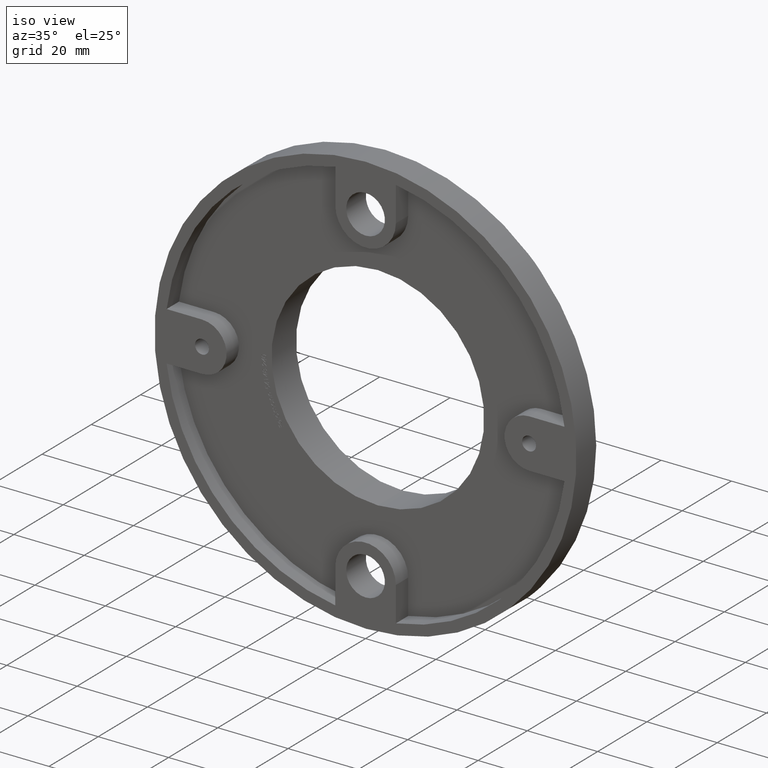
[diagram: clean part render]
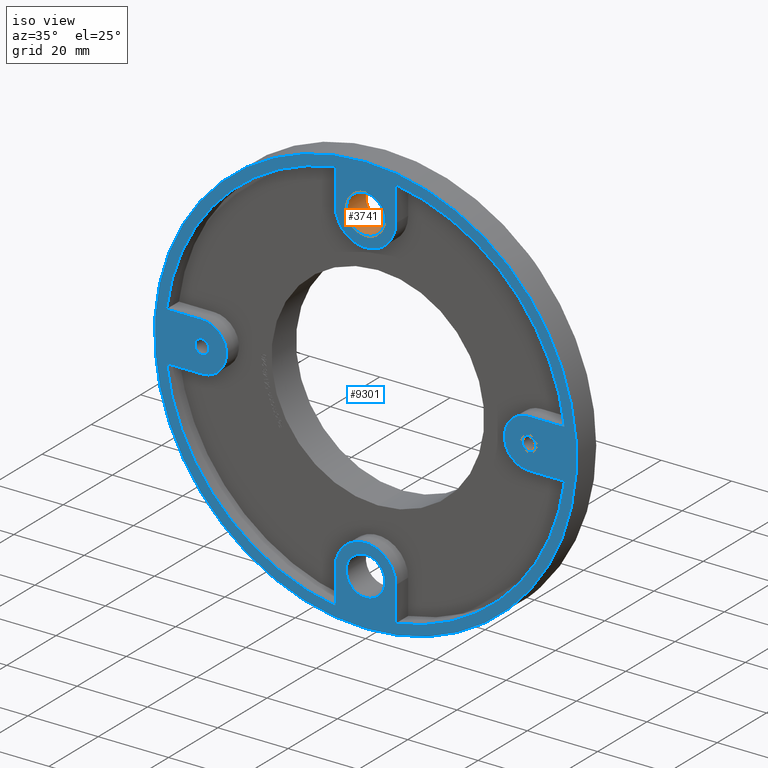
[diagram: same view with the hole feature highlighted: cylindrical wall and planar end face, labeled with their STEP entity ids]
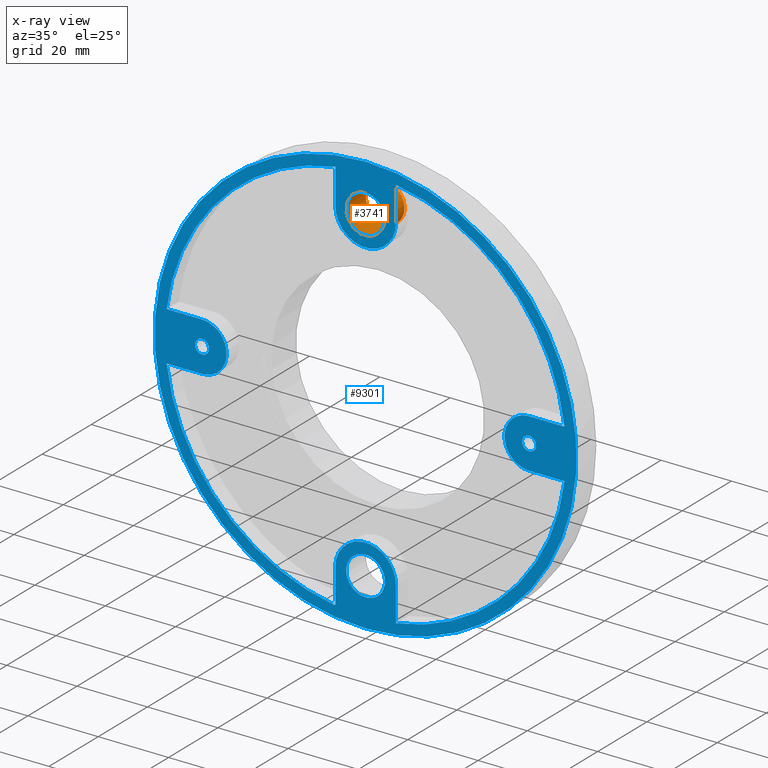
[diagram: x-ray of the same camera — body ghosted, the hole faces saturated]
A machine part, iso view. The highlighted faces form one hole feature of diameter 11 mm: the cylindrical wall (entity #3741, orange) and its adjacent planar end face (entity #9301, blue) — they share a circular edge in the B-rep.
The next image is the same camera in x-ray (body ghosted, the hole faces saturated) — the bore reads through the body.
Wall:
#30 = DIRECTION ( 'NONE',  ( 0.000000000000000000, 1.000000000000000000, 0.000000000000000000 ) ) ;
#431 = AXIS2_PLACEMENT_3D ( 'NONE', #11296, #30, #2151 ) ;
#748 = CARTESIAN_POINT ( 'NONE',  ( 0.000000000000000000, 0.000000000000000000, 52.00000000000000000 ) ) ;
#1277 = CARTESIAN_POINT ( 'NONE',  ( 0.000000000000000000, 8.000000000000000000, 46.50000000000000000 ) ) ;
#1892 = CARTESIAN_POINT ( 'NONE',  ( 0.000000000000000000, 0.000000000000000000, 46.50000000000000000 ) ) ;
#2151 = DIRECTION ( 'NONE',  ( 0.000000000000000000, 0.000000000000000000, 1.000000000000000000 ) ) ;
#2725 = AXIS2_PLACEMENT_3D ( 'NONE', #1892, #2877, #12040 ) ;
#2877 = DIRECTION ( 'NONE',  ( 0.000000000000000000, 1.000000000000000000, 0.000000000000000000 ) ) ;
#2944 = EDGE_CURVE ( 'NONE', #11782, #11782, #6981, .T. ) ;
#3592 = ORIENTED_EDGE ( 'NONE', *, *, #2944, .F. ) ;
#3741 = ADVANCED_FACE ( 'NONE', ( #7280, #11120 ), #8912, .F. ) ;
#4895 = ORIENTED_EDGE ( 'NONE', *, *, #12231, .T. ) ;
#6981 = CIRCLE ( 'NONE', #2725, 5.499999999999998224 ) ;
#7027 = EDGE_LOOP ( 'NONE', ( #4895 ) ) ;
#7280 = FACE_OUTER_BOUND ( 'NONE', #7027, .T. ) ;
#7331 = AXIS2_PLACEMENT_3D ( 'NONE', #1277, #13145, #8007 ) ;
#8007 = DIRECTION ( 'NONE',  ( 0.000000000000000000, 0.000000000000000000, -1.000000000000000000 ) ) ;
#8912 = CYLINDRICAL_SURFACE ( 'NONE', #7331, 5.499999999999998224 ) ;
#9099 = VERTEX_POINT ( 'NONE', #10815 ) ;
#9560 = EDGE_LOOP ( 'NONE', ( #3592 ) ) ;
#10544 = CIRCLE ( 'NONE', #431, 5.499999999999998224 ) ;
#10815 = CARTESIAN_POINT ( 'NONE',  ( 0.000000000000000000, 8.000000000000000000, 52.00000000000000000 ) ) ;
#11120 = FACE_OUTER_BOUND ( 'NONE', #9560, .T. ) ;
#11296 = CARTESIAN_POINT ( 'NONE',  ( 0.000000000000000000, 8.000000000000000000, 46.50000000000000000 ) ) ;
#11782 = VERTEX_POINT ( 'NONE', #748 ) ;
#12040 = DIRECTION ( 'NONE',  ( 0.000000000000000000, 0.000000000000000000, 1.000000000000000000 ) ) ;
#12231 = EDGE_CURVE ( 'NONE', #9099, #9099, #10544, .T. ) ;
#13145 = DIRECTION ( 'NONE',  ( -0.000000000000000000, -1.000000000000000000, -0.000000000000000000 ) ) ;
End face:
#78 = CARTESIAN_POINT ( 'NONE',  ( 1.206039934574417412E-15, -0.000000000000000000, -6.999999999999998224 ) ) ;
#236 = DIRECTION ( 'NONE',  ( -0.000000000000000000, 1.000000000000000000, -0.000000000000000000 ) ) ;
#239 = EDGE_CURVE ( 'NONE', #12414, #12414, #6440, .T. ) ;
#248 = ORIENTED_EDGE ( 'NONE', *, *, #7575, .T. ) ;
#375 = CARTESIAN_POINT ( 'NONE',  ( 0.000000000000000000, 0.000000000000000000, 6.999999999999993783 ) ) ;
#508 = CARTESIAN_POINT ( 'NONE',  ( -8.624999999999992895, 0.000000000000000000, -56.34367200493768735 ) ) ;
#567 = AXIS2_PLACEMENT_3D ( 'NONE', #2867, #5918, #8089 ) ;
#662 = CARTESIAN_POINT ( 'NONE',  ( 0.000000000000000000, 0.000000000000000000, 0.000000000000000000 ) ) ;
#748 = CARTESIAN_POINT ( 'NONE',  ( 0.000000000000000000, 0.000000000000000000, 52.00000000000000000 ) ) ;
#765 = VERTEX_POINT ( 'NONE', #10303 ) ;
#766 = AXIS2_PLACEMENT_3D ( 'NONE', #11812, #11901, #7008 ) ;
#861 = DIRECTION ( 'NONE',  ( 0.000000000000000000, 1.000000000000000000, 0.000000000000000000 ) ) ;
#995 = EDGE_CURVE ( 'NONE', #13049, #6119, #9145, .T. ) ;
#1021 = DIRECTION ( 'NONE',  ( 0.000000000000000000, 0.000000000000000000, 1.000000000000000000 ) ) ;
#1149 = CARTESIAN_POINT ( 'NONE',  ( -8.625000000000007105, 0.000000000000000000, 56.34367200493768735 ) ) ;
#1258 = AXIS2_PLACEMENT_3D ( 'NONE', #10843, #6785, #7904 ) ;
#1276 = ORIENTED_EDGE ( 'NONE', *, *, #7214, .T. ) ;
#1315 = CARTESIAN_POINT ( 'NONE',  ( 0.000000000000000000, 0.000000000000000000, 0.000000000000000000 ) ) ;
#1324 = CIRCLE ( 'NONE', #1258, 5.499999999999998224 ) ;
#1367 = LINE ( 'NONE', #11327, #5513 ) ;
#1368 = VERTEX_POINT ( 'NONE', #5610 ) ;
#1402 = LINE ( 'NONE', #11568, #5557 ) ;
#1531 = ORIENTED_EDGE ( 'NONE', *, *, #9963, .F. ) ;
#1718 = CARTESIAN_POINT ( 'NONE',  ( 0.000000000000000000, 0.000000000000000000, -52.00000000000000000 ) ) ;
#1844 = EDGE_CURVE ( 'NONE', #8005, #12554, #3851, .T. ) ;
#1848 = ORIENTED_EDGE ( 'NONE', *, *, #8171, .F. ) ;
#1892 = CARTESIAN_POINT ( 'NONE',  ( 0.000000000000000000, 0.000000000000000000, 46.50000000000000000 ) ) ;
#1956 = FACE_BOUND ( 'NONE', #10724, .T. ) ;
#1985 = CARTESIAN_POINT ( 'NONE',  ( -46.50000000000000000, 0.000000000000000000, 0.000000000000000000 ) ) ;
#2062 = DIRECTION ( 'NONE',  ( 1.762272732275772637E-16, 0.000000000000000000, -1.000000000000000000 ) ) ;
#2133 = DIRECTION ( 'NONE',  ( 0.000000000000000000, 0.000000000000000000, -1.000000000000000000 ) ) ;
#2211 = EDGE_LOOP ( 'NONE', ( #13188 ) ) ;
#2240 = DIRECTION ( 'NONE',  ( 0.000000000000000000, 0.000000000000000000, -1.000000000000000000 ) ) ;
#2289 = CARTESIAN_POINT ( 'NONE',  ( 8.625000000000005329, 0.000000000000000000, -46.50000000000000000 ) ) ;
#2489 = ORIENTED_EDGE ( 'NONE', *, *, #2944, .T. ) ;
#2607 = CARTESIAN_POINT ( 'NONE',  ( 0.000000000000000000, 0.000000000000000000, 0.000000000000000000 ) ) ;
#2625 = AXIS2_PLACEMENT_3D ( 'NONE', #1315, #7387, #2240 ) ;
#2678 = ORIENTED_EDGE ( 'NONE', *, *, #995, .T. ) ;
#2725 = AXIS2_PLACEMENT_3D ( 'NONE', #1892, #2877, #12040 ) ;
#2746 = CARTESIAN_POINT ( 'NONE',  ( 0.000000000000000000, 0.000000000000000000, 60.00000000000000000 ) ) ;
#2866 = DIRECTION ( 'NONE',  ( 0.000000000000000000, 0.000000000000000000, 1.000000000000000000 ) ) ;
#2867 = CARTESIAN_POINT ( 'NONE',  ( 46.50000000000000000, 0.000000000000000000, 0.000000000000000000 ) ) ;
#2869 = EDGE_CURVE ( 'NONE', #8707, #3365, #9073, .T. ) ;
#2877 = DIRECTION ( 'NONE',  ( 0.000000000000000000, 1.000000000000000000, 0.000000000000000000 ) ) ;
#2944 = EDGE_CURVE ( 'NONE', #11782, #11782, #6981, .T. ) ;
#2971 = AXIS2_PLACEMENT_3D ( 'NONE', #662, #5740, #12940 ) ;
#3033 = DIRECTION ( 'NONE',  ( 1.000000000000000000, 0.000000000000000000, 2.584371288373752584E-16 ) ) ;
#3074 = CARTESIAN_POINT ( 'NONE',  ( -46.50000000000000000, 0.000000000000000000, 6.999999999999993783 ) ) ;
#3165 = ORIENTED_EDGE ( 'NONE', *, *, #3822, .F. ) ;
#3192 = CIRCLE ( 'NONE', #4010, 8.625000000000000000 ) ;
#3244 = FACE_BOUND ( 'NONE', #3296, .T. ) ;
#3296 = EDGE_LOOP ( 'NONE', ( #8952 ) ) ;
#3365 = VERTEX_POINT ( 'NONE', #1149 ) ;
#3432 = EDGE_CURVE ( 'NONE', #13049, #3770, #1402, .T. ) ;
#3739 = VECTOR ( 'NONE', #9383, 1000.000000000000000 ) ;
#3770 = VERTEX_POINT ( 'NONE', #4756 ) ;
#3822 = EDGE_CURVE ( 'NONE', #8005, #8894, #7940, .T. ) ;
#3851 = CIRCLE ( 'NONE', #766, 7.000000000000000000 ) ;
#3979 = VERTEX_POINT ( 'NONE', #2746 ) ;
#4010 = AXIS2_PLACEMENT_3D ( 'NONE', #6680, #5476, #7573 ) ;
#4019 = VECTOR ( 'NONE', #6642, 1000.000000000000000 ) ;
#4217 = CARTESIAN_POINT ( 'NONE',  ( -8.625000000000003553, -0.000000000000000000, -1.519960231587854639E-15 ) ) ;
#4223 = EDGE_CURVE ( 'NONE', #4466, #4466, #9200, .T. ) ;
#4466 = VERTEX_POINT ( 'NONE', #6851 ) ;
#4538 = LINE ( 'NONE', #6214, #7061 ) ;
#4756 = CARTESIAN_POINT ( 'NONE',  ( 8.625000000000007105, 0.000000000000000000, -56.34367200493768735 ) ) ;
#4955 = CARTESIAN_POINT ( 'NONE',  ( 8.624999999999992895, 0.000000000000000000, 56.34367200493768735 ) ) ;
#5076 = CARTESIAN_POINT ( 'NONE',  ( -8.625000000000007105, 0.000000000000000000, 46.50000000000000000 ) ) ;
#5210 = DIRECTION ( 'NONE',  ( -1.000000000000000000, 0.000000000000000000, -1.722914192249168225E-16 ) ) ;
#5278 = CARTESIAN_POINT ( 'NONE',  ( 56.56854249492380404, 0.000000000000000000, -6.999999999999993783 ) ) ;
#5339 = EDGE_LOOP ( 'NONE', ( #248 ) ) ;
#5367 = AXIS2_PLACEMENT_3D ( 'NONE', #11793, #11962, #9016 ) ;
#5422 = EDGE_CURVE ( 'NONE', #9513, #765, #1367, .T. ) ;
#5476 = DIRECTION ( 'NONE',  ( -0.000000000000000000, 1.000000000000000000, -0.000000000000000000 ) ) ;
#5489 = FACE_BOUND ( 'NONE', #5339, .T. ) ;
#5513 = VECTOR ( 'NONE', #3033, 1000.000000000000000 ) ;
#5544 = VECTOR ( 'NONE', #5210, 1000.000000000000000 ) ;
#5557 = VECTOR ( 'NONE', #9491, 1000.000000000000000 ) ;
#5610 = CARTESIAN_POINT ( 'NONE',  ( 46.50000000000000000, 0.000000000000000000, -6.999999999999992895 ) ) ;
#5740 = DIRECTION ( 'NONE',  ( 0.000000000000000000, -1.000000000000000000, 0.000000000000000000 ) ) ;
#5886 = CARTESIAN_POINT ( 'NONE',  ( -8.625000000000007105, -0.000000000000000000, 0.000000000000000000 ) ) ;
#5918 = DIRECTION ( 'NONE',  ( 0.000000000000000000, 1.000000000000000000, -0.000000000000000000 ) ) ;
#5974 = AXIS2_PLACEMENT_3D ( 'NONE', #12020, #861, #8038 ) ;
#6029 = VECTOR ( 'NONE', #9848, 1000.000000000000000 ) ;
#6067 = ORIENTED_EDGE ( 'NONE', *, *, #2869, .F. ) ;
#6119 = VERTEX_POINT ( 'NONE', #12706 ) ;
#6120 = DIRECTION ( 'NONE',  ( 1.000000000000000000, 0.000000000000000000, -8.614570961245841126E-17 ) ) ;
#6214 = CARTESIAN_POINT ( 'NONE',  ( -6.030199672872079174E-16, -0.000000000000000000, -6.999999999999988454 ) ) ;
#6238 = LINE ( 'NONE', #4217, #10380 ) ;
#6328 = ORIENTED_EDGE ( 'NONE', *, *, #11320, .F. ) ;
#6440 = CIRCLE ( 'NONE', #7224, 2.000000000000003109 ) ;
#6606 = FACE_OUTER_BOUND ( 'NONE', #2211, .T. ) ;
#6642 = DIRECTION ( 'NONE',  ( -3.524545464551545274E-16, 0.000000000000000000, 1.000000000000000000 ) ) ;
#6680 = CARTESIAN_POINT ( 'NONE',  ( -1.138921523207038456E-14, 0.000000000000000000, 46.50000000000000000 ) ) ;
#6744 = LINE ( 'NONE', #12813, #4019 ) ;
#6785 = DIRECTION ( 'NONE',  ( 0.000000000000000000, 1.000000000000000000, -0.000000000000000000 ) ) ;
#6805 = CARTESIAN_POINT ( 'NONE',  ( -46.50000000000000000, 0.000000000000000000, 2.000000000000003109 ) ) ;
#6824 = ORIENTED_EDGE ( 'NONE', *, *, #1844, .T. ) ;
#6851 = CARTESIAN_POINT ( 'NONE',  ( 46.50000000000000000, 0.000000000000000000, -2.000000000000003109 ) ) ;
#6981 = CIRCLE ( 'NONE', #2725, 5.499999999999998224 ) ;
#7008 = DIRECTION ( 'NONE',  ( 0.000000000000000000, 0.000000000000000000, -1.000000000000000000 ) ) ;
#7039 = ORIENTED_EDGE ( 'NONE', *, *, #12152, .T. ) ;
#7061 = VECTOR ( 'NONE', #6120, 1000.000000000000000 ) ;
#7134 = EDGE_CURVE ( 'NONE', #3979, #3979, #12965, .T. ) ;
#7214 = EDGE_CURVE ( 'NONE', #1368, #11329, #4538, .T. ) ;
#7224 = AXIS2_PLACEMENT_3D ( 'NONE', #1985, #13216, #1021 ) ;
#7248 = AXIS2_PLACEMENT_3D ( 'NONE', #9329, #236, #2133 ) ;
#7344 = DIRECTION ( 'NONE',  ( 0.000000000000000000, -1.000000000000000000, 0.000000000000000000 ) ) ;
#7387 = DIRECTION ( 'NONE',  ( 0.000000000000000000, -1.000000000000000000, 0.000000000000000000 ) ) ;
#7416 = AXIS2_PLACEMENT_3D ( 'NONE', #10050, #13102, #2866 ) ;
#7507 = VERTEX_POINT ( 'NONE', #508 ) ;
#7532 = ORIENTED_EDGE ( 'NONE', *, *, #8084, .F. ) ;
#7573 = DIRECTION ( 'NONE',  ( 0.000000000000000000, 0.000000000000000000, -1.000000000000000000 ) ) ;
#7575 = EDGE_CURVE ( 'NONE', #10195, #10195, #1324, .T. ) ;
#7615 = AXIS2_PLACEMENT_3D ( 'NONE', #9485, #7344, #11473 ) ;
#7887 = CARTESIAN_POINT ( 'NONE',  ( -56.56854249492379694, 0.000000000000000000, -7.000000000000007105 ) ) ;
#7904 = DIRECTION ( 'NONE',  ( 0.000000000000000000, 0.000000000000000000, -1.000000000000000000 ) ) ;
#7940 = LINE ( 'NONE', #78, #5544 ) ;
#7955 = PLANE ( 'NONE',  #5974 ) ;
#8005 = VERTEX_POINT ( 'NONE', #8412 ) ;
#8038 = DIRECTION ( 'NONE',  ( 0.000000000000000000, -0.000000000000000000, 1.000000000000000000 ) ) ;
#8059 = EDGE_LOOP ( 'NONE', ( #8327 ) ) ;
#8084 = EDGE_CURVE ( 'NONE', #765, #9791, #10928, .T. ) ;
#8089 = DIRECTION ( 'NONE',  ( 0.000000000000000000, 0.000000000000000000, -1.000000000000000000 ) ) ;
#8171 = EDGE_CURVE ( 'NONE', #8894, #7507, #8213, .T. ) ;
#8213 = CIRCLE ( 'NONE', #9293, 56.99999999999999289 ) ;
#8245 = VERTEX_POINT ( 'NONE', #11777 ) ;
#8327 = ORIENTED_EDGE ( 'NONE', *, *, #4223, .T. ) ;
#8349 = FACE_BOUND ( 'NONE', #12065, .T. ) ;
#8410 = ORIENTED_EDGE ( 'NONE', *, *, #5422, .F. ) ;
#8412 = CARTESIAN_POINT ( 'NONE',  ( -46.50000000000000000, 0.000000000000000000, -7.000000000000006217 ) ) ;
#8519 = EDGE_CURVE ( 'NONE', #12554, #9984, #12487, .T. ) ;
#8707 = VERTEX_POINT ( 'NONE', #5076 ) ;
#8867 = DIRECTION ( 'NONE',  ( 0.000000000000000000, -1.000000000000000000, 0.000000000000000000 ) ) ;
#8894 = VERTEX_POINT ( 'NONE', #7887 ) ;
#8952 = ORIENTED_EDGE ( 'NONE', *, *, #239, .T. ) ;
#9016 = DIRECTION ( 'NONE',  ( 0.000000000000000000, 0.000000000000000000, -1.000000000000000000 ) ) ;
#9073 = LINE ( 'NONE', #5886, #6029 ) ;
#9145 = CIRCLE ( 'NONE', #5367, 8.625000000000000000 ) ;
#9200 = CIRCLE ( 'NONE', #567, 2.000000000000003109 ) ;
#9293 = AXIS2_PLACEMENT_3D ( 'NONE', #2607, #8867, #10770 ) ;
#9301 = ADVANCED_FACE ( 'NONE', ( #8349, #6606, #3244, #1956, #11691, #5489 ), #7955, .F. ) ;
#9329 = CARTESIAN_POINT ( 'NONE',  ( 46.50000000000000000, 0.000000000000000000, 1.138921523207038456E-14 ) ) ;
#9383 = DIRECTION ( 'NONE',  ( -1.000000000000000000, 0.000000000000000000, 0.000000000000000000 ) ) ;
#9485 = CARTESIAN_POINT ( 'NONE',  ( 0.000000000000000000, 0.000000000000000000, 0.000000000000000000 ) ) ;
#9491 = DIRECTION ( 'NONE',  ( 1.762272732275772637E-16, 0.000000000000000000, -1.000000000000000000 ) ) ;
#9513 = VERTEX_POINT ( 'NONE', #11319 ) ;
#9791 = VERTEX_POINT ( 'NONE', #4955 ) ;
#9848 = DIRECTION ( 'NONE',  ( 0.000000000000000000, 0.000000000000000000, 1.000000000000000000 ) ) ;
#9914 = ORIENTED_EDGE ( 'NONE', *, *, #8519, .T. ) ;
#9928 = CIRCLE ( 'NONE', #7248, 6.999999999999999112 ) ;
#9963 = EDGE_CURVE ( 'NONE', #3770, #11329, #11044, .T. ) ;
#9984 = VERTEX_POINT ( 'NONE', #12897 ) ;
#10050 = CARTESIAN_POINT ( 'NONE',  ( 0.000000000000000000, 0.000000000000000000, 0.000000000000000000 ) ) ;
#10195 = VERTEX_POINT ( 'NONE', #1718 ) ;
#10303 = CARTESIAN_POINT ( 'NONE',  ( 56.56854249492380404, 0.000000000000000000, 7.000000000000007994 ) ) ;
#10380 = VECTOR ( 'NONE', #2062, 1000.000000000000000 ) ;
#10487 = EDGE_CURVE ( 'NONE', #8245, #9791, #6744, .T. ) ;
#10573 = ORIENTED_EDGE ( 'NONE', *, *, #13022, .F. ) ;
#10700 = ORIENTED_EDGE ( 'NONE', *, *, #3432, .F. ) ;
#10724 = EDGE_LOOP ( 'NONE', ( #2489 ) ) ;
#10770 = DIRECTION ( 'NONE',  ( 0.000000000000000000, 0.000000000000000000, -1.000000000000000000 ) ) ;
#10843 = CARTESIAN_POINT ( 'NONE',  ( 0.000000000000000000, 0.000000000000000000, -46.50000000000000000 ) ) ;
#10928 = CIRCLE ( 'NONE', #2625, 56.99999999999999289 ) ;
#11044 = CIRCLE ( 'NONE', #2971, 56.99999999999999289 ) ;
#11319 = CARTESIAN_POINT ( 'NONE',  ( 46.50000000000000000, 0.000000000000000000, 7.000000000000005329 ) ) ;
#11320 = EDGE_CURVE ( 'NONE', #1368, #9513, #9928, .T. ) ;
#11327 = CARTESIAN_POINT ( 'NONE',  ( -1.809059901861625231E-15, -0.000000000000000000, 6.999999999999992895 ) ) ;
#11329 = VERTEX_POINT ( 'NONE', #5278 ) ;
#11473 = DIRECTION ( 'NONE',  ( 0.000000000000000000, 0.000000000000000000, -1.000000000000000000 ) ) ;
#11568 = CARTESIAN_POINT ( 'NONE',  ( 8.624999999999996447, 0.000000000000000000, 1.519960231587853259E-15 ) ) ;
#11633 = CIRCLE ( 'NONE', #7615, 56.99999999999999289 ) ;
#11691 = FACE_BOUND ( 'NONE', #8059, .T. ) ;
#11777 = CARTESIAN_POINT ( 'NONE',  ( 8.624999999999996447, 0.000000000000000000, 46.50000000000000000 ) ) ;
#11782 = VERTEX_POINT ( 'NONE', #748 ) ;
#11793 = CARTESIAN_POINT ( 'NONE',  ( 0.000000000000000000, 0.000000000000000000, -46.50000000000000000 ) ) ;
#11812 = CARTESIAN_POINT ( 'NONE',  ( -46.50000000000000000, 0.000000000000000000, 0.000000000000000000 ) ) ;
#11890 = ORIENTED_EDGE ( 'NONE', *, *, #10487, .T. ) ;
#11901 = DIRECTION ( 'NONE',  ( 0.000000000000000000, -1.000000000000000000, 0.000000000000000000 ) ) ;
#11962 = DIRECTION ( 'NONE',  ( 0.000000000000000000, -1.000000000000000000, 0.000000000000000000 ) ) ;
#11975 = EDGE_CURVE ( 'NONE', #8245, #8707, #3192, .T. ) ;
#12020 = CARTESIAN_POINT ( 'NONE',  ( 0.000000000000000000, 0.000000000000000000, 0.000000000000000000 ) ) ;
#12040 = DIRECTION ( 'NONE',  ( 0.000000000000000000, 0.000000000000000000, 1.000000000000000000 ) ) ;
#12065 = EDGE_LOOP ( 'NONE', ( #1848, #3165, #6824, #9914, #10573, #6067, #12179, #11890, #7532, #8410, #6328, #1276, #1531, #10700, #2678, #7039 ) ) ;
#12152 = EDGE_CURVE ( 'NONE', #6119, #7507, #6238, .T. ) ;
#12179 = ORIENTED_EDGE ( 'NONE', *, *, #11975, .F. ) ;
#12414 = VERTEX_POINT ( 'NONE', #6805 ) ;
#12487 = LINE ( 'NONE', #375, #3739 ) ;
#12554 = VERTEX_POINT ( 'NONE', #3074 ) ;
#12706 = CARTESIAN_POINT ( 'NONE',  ( -8.624999999999994671, 0.000000000000000000, -46.50000000000000000 ) ) ;
#12813 = CARTESIAN_POINT ( 'NONE',  ( 8.625000000000012434, 0.000000000000000000, 3.039920463175712434E-15 ) ) ;
#12897 = CARTESIAN_POINT ( 'NONE',  ( -56.56854249492380404, 0.000000000000000000, 6.999999999999993783 ) ) ;
#12940 = DIRECTION ( 'NONE',  ( 0.000000000000000000, 0.000000000000000000, -1.000000000000000000 ) ) ;
#12965 = CIRCLE ( 'NONE', #7416, 60.00000000000000000 ) ;
#13022 = EDGE_CURVE ( 'NONE', #3365, #9984, #11633, .T. ) ;
#13049 = VERTEX_POINT ( 'NONE', #2289 ) ;
#13102 = DIRECTION ( 'NONE',  ( 0.000000000000000000, 1.000000000000000000, 0.000000000000000000 ) ) ;
#13188 = ORIENTED_EDGE ( 'NONE', *, *, #7134, .F. ) ;
#13216 = DIRECTION ( 'NONE',  ( 0.000000000000000000, 1.000000000000000000, 0.000000000000000000 ) ) ;